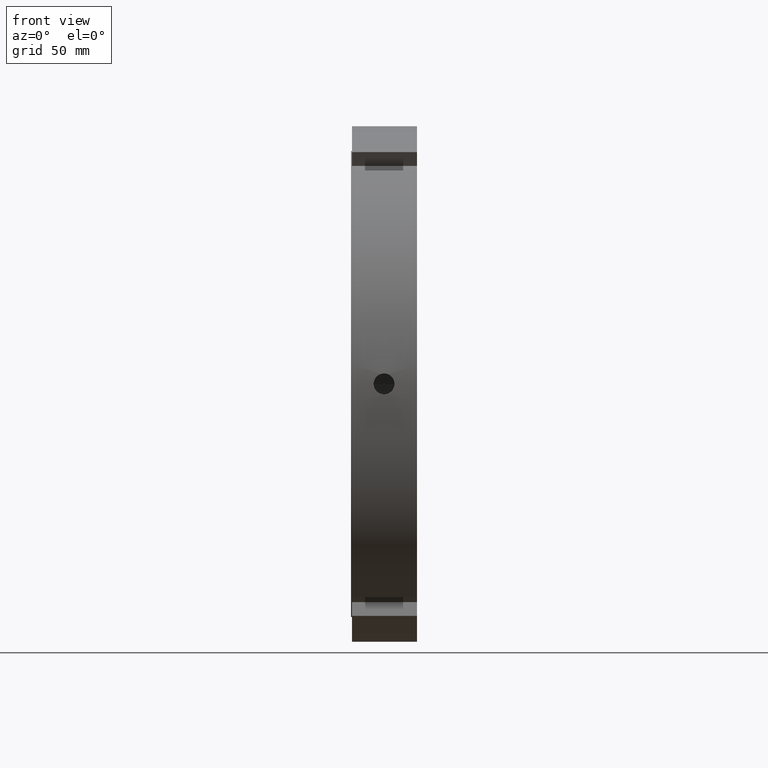
[diagram: clean part render]
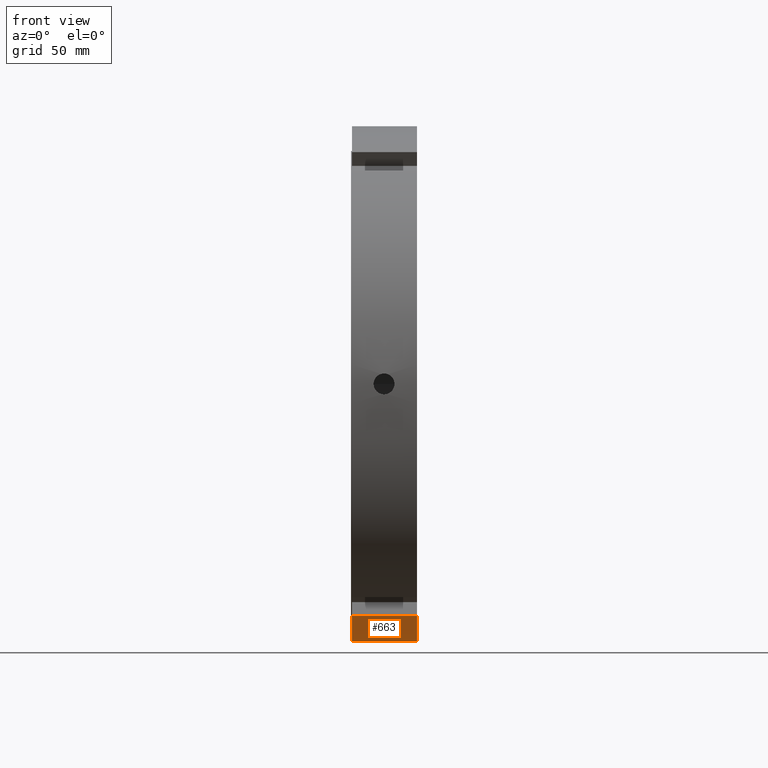
[diagram: same view with one face highlighted and labeled with its STEP entity id]
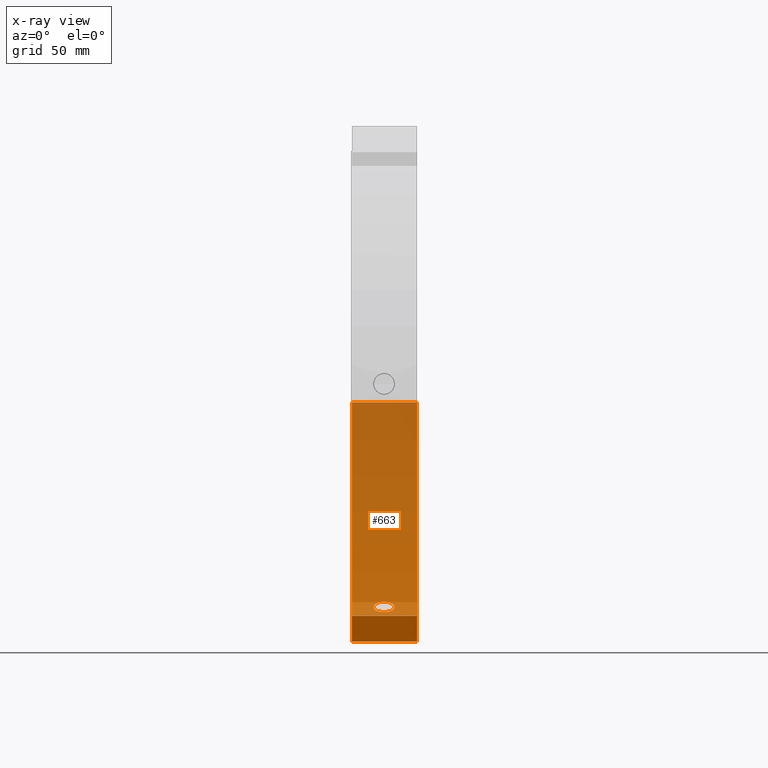
[diagram: x-ray of the same camera — body ghosted, the highlighted face saturated]
A machine part, front view. The second image highlights one B-rep face of the part: STEP entity #663.
The next image is the same camera in x-ray: the body ghosted, the highlighted face saturated — about 89% of this face is hidden behind the body in this view.
In plain terms, the highlighted cylindrical surface (partial cylindrical patch) has radius 125 mm, axis along (1, 0, 0).
Its self-contained STEP definition (entity closure, byte-faithful):
#161=CARTESIAN_POINT('',(15.999999999999975,58.099200959550515,-110.67738182601613));
#162=VERTEX_POINT('',#161);
#163=CARTESIAN_POINT('',(15.999999999999972,58.099200959550508,-110.67738182601613));
#164=CARTESIAN_POINT('',(16.634539898765912,58.099200959550508,-110.67738182601613));
#165=CARTESIAN_POINT('',(17.311328175890807,58.211687831216842,-110.61856073020267));
#166=CARTESIAN_POINT('',(18.556263846837648,58.667871782971979,-110.37729566623133));
#167=CARTESIAN_POINT('',(19.124417048440172,59.011427071519371,-110.19461364657201));
#168=CARTESIAN_POINT('',(20.021609249121369,59.801141037300596,-109.76805059303715));
#169=CARTESIAN_POINT('',(20.410476452290467,60.299937054383946,-109.4956855140849));
#170=CARTESIAN_POINT('',(20.926173719096202,61.387564347225769,-108.88964366952408));
#171=CARTESIAN_POINT('',(21.05299999999998,61.976262764715173,-108.55572528361428));
#172=CARTESIAN_POINT('',(21.052999999999969,63.075167691644864,-107.92092412878347));
#173=CARTESIAN_POINT('',(20.926172027311868,63.658539793404998,-107.57777592409255));
#174=CARTESIAN_POINT('',(20.410471918155388,64.726906226415338,-106.93837090474595));
#175=CARTESIAN_POINT('',(20.021603653115164,65.212043519079415,-106.6423498681752));
#176=CARTESIAN_POINT('',(19.124412178461185,65.976098033176783,-106.17135156118577));
#177=CARTESIAN_POINT('',(18.556261137858204,66.305988841504785,-105.96500565682156));
#178=CARTESIAN_POINT('',(17.311328183428703,66.742898421421572,-105.69035949629026));
#179=CARTESIAN_POINT('',(16.634540372385892,66.850052396085559,-105.62230112358192));
#180=CARTESIAN_POINT('',(15.365459627614054,66.850052396085559,-105.62230112358192));
#181=CARTESIAN_POINT('',(14.688671816571244,66.742898421421572,-105.69035949629026));
#182=CARTESIAN_POINT('',(13.443738862141743,66.305988841504785,-105.96500565682156));
#183=CARTESIAN_POINT('',(12.875587821538765,65.976098033176797,-106.17135156118577));
#184=CARTESIAN_POINT('',(11.978396346884786,65.212043519079415,-106.64234986817519));
#185=CARTESIAN_POINT('',(11.58952808184457,64.726906226415338,-106.93837090474595));
#186=CARTESIAN_POINT('',(11.073827972688083,63.658539793405005,-107.57777592409255));
#187=CARTESIAN_POINT('',(10.946999999999974,63.075167691644864,-107.92092412878347));
#188=CARTESIAN_POINT('',(10.946999999999974,61.976262764715173,-108.55572528361428));
#189=CARTESIAN_POINT('',(11.073826280903745,61.387564347225769,-108.88964366952408));
#190=CARTESIAN_POINT('',(11.589523547709481,60.299937054383946,-109.4956855140849));
#191=CARTESIAN_POINT('',(11.978390750878578,59.801141037300596,-109.76805059303715));
#192=CARTESIAN_POINT('',(12.875582951559776,59.011427071519378,-110.19461364657201));
#193=CARTESIAN_POINT('',(13.443736153162288,58.667871782971986,-110.37729566623133));
#194=CARTESIAN_POINT('',(14.688671824109127,58.211687831216842,-110.61856073020267));
#195=CARTESIAN_POINT('',(15.365460101234035,58.099200959550508,-110.67738182601613));
#196=CARTESIAN_POINT('',(15.999999999999975,58.099200959550508,-110.67738182601613));
#197=B_SPLINE_CURVE_WITH_KNOTS('',3,(#163,#164,#165,#166,#167,#168,#169,#170,#171,#172,#173,#174,#175,#176,#177,#178,#179,#180,#181,#182,#183,#184,#185,#186,#187,#188,#189,#190,#191,#192,#193,#194,#195,#196),.UNSPECIFIED.,.T.,.U.,(4,2,2,2,2,2,2,2,2,2,2,2,2,2,2,2,4),(0.0,0.190361969629782,0.380723939259565,0.571085258675598,0.761446578091632,0.951809317561346,1.142172057031061,1.332534168746836,1.522896280462612,1.713258392178388,1.903620503894164,2.093983243363878,2.284345982833592,2.474707302249626,2.66506862166566,2.855430591295442,3.045792560925225),.UNSPECIFIED.);
#198=EDGE_CURVE('',#162,#162,#197,.T.);
#408=CARTESIAN_POINT('',(0.499999999999963,-54.54356086797489,-112.47221864905804));
#409=VERTEX_POINT('',#408);
#416=CARTESIAN_POINT('',(31.999999999999975,-54.54356086797489,-112.47221864905804));
#417=VERTEX_POINT('',#416);
#418=CARTESIAN_POINT('',(31.999999999999979,-54.543560867974897,-112.47221864905804));
#419=DIRECTION('',(-1.0,0.0,0.0));
#420=VECTOR('',#419,31.500000000000014);
#421=LINE('',#418,#420);
#422=EDGE_CURVE('',#417,#409,#421,.T.);
#544=CARTESIAN_POINT('',(31.999999999999975,124.67557900406959,-8.999999999999984));
#545=VERTEX_POINT('',#544);
#546=CARTESIAN_POINT('',(31.999999999999975,0.0,0.0));
#547=DIRECTION('',(1.0,0.0,0.0));
#548=DIRECTION('',(0.0,1.0,0.0));
#549=AXIS2_PLACEMENT_3D('',#546,#547,#548);
#550=CIRCLE('',#549,125.0);
#551=EDGE_CURVE('',#417,#545,#550,.T.);
#636=CARTESIAN_POINT('',(16.249999999999968,0.0,0.0));
#637=DIRECTION('',(1.0,0.0,0.0));
#638=DIRECTION('',(0.0,1.0,0.0));
#639=AXIS2_PLACEMENT_3D('',#636,#637,#638);
#640=CYLINDRICAL_SURFACE('',#639,125.0);
#641=ORIENTED_EDGE('',*,*,#422,.T.);
#642=CARTESIAN_POINT('',(0.499999999999963,124.67557900406959,-8.999999999999984));
#643=VERTEX_POINT('',#642);
#644=CARTESIAN_POINT('',(0.499999999999963,0.0,0.0));
#645=DIRECTION('',(1.0,0.0,0.0));
#646=DIRECTION('',(0.0,1.0,0.0));
#647=AXIS2_PLACEMENT_3D('',#644,#645,#646);
#648=CIRCLE('',#647,125.0);
#649=EDGE_CURVE('',#409,#643,#648,.T.);
#650=ORIENTED_EDGE('',*,*,#649,.T.);
#651=CARTESIAN_POINT('',(0.499999999999964,124.67557900406959,-8.999999999999984));
#652=DIRECTION('',(1.0,0.0,0.0));
#653=VECTOR('',#652,31.500000000000014);
#654=LINE('',#651,#653);
#655=EDGE_CURVE('',#643,#545,#654,.T.);
#656=ORIENTED_EDGE('',*,*,#655,.T.);
#657=ORIENTED_EDGE('',*,*,#551,.F.);
#658=EDGE_LOOP('',(#641,#650,#656,#657));
#659=FACE_OUTER_BOUND('',#658,.T.);
#660=ORIENTED_EDGE('',*,*,#198,.T.);
#661=EDGE_LOOP('',(#660));
#662=FACE_BOUND('',#661,.T.);
#663=ADVANCED_FACE('',(#659,#662),#640,.T.);